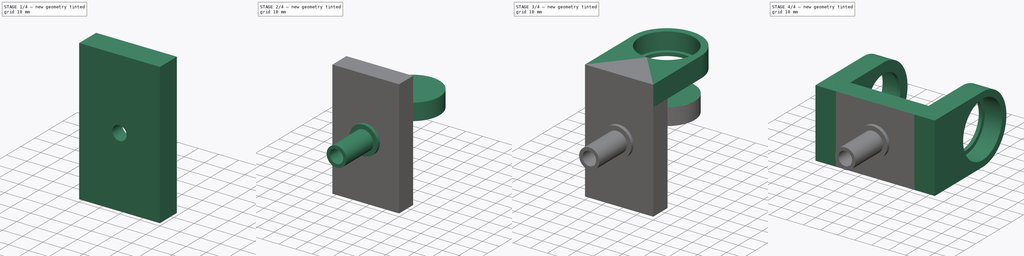
[diagram: build sequence overview — one tinted view per stage of 4, left to right]
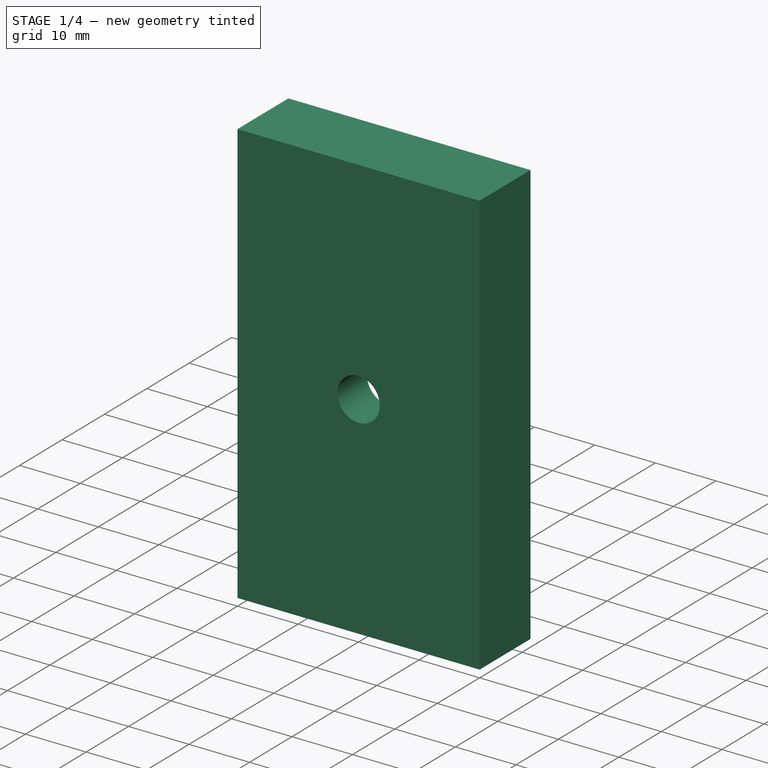
[diagram: stage 1 of 4 — iso view after this stage's code; geometry added in this stage tinted green]
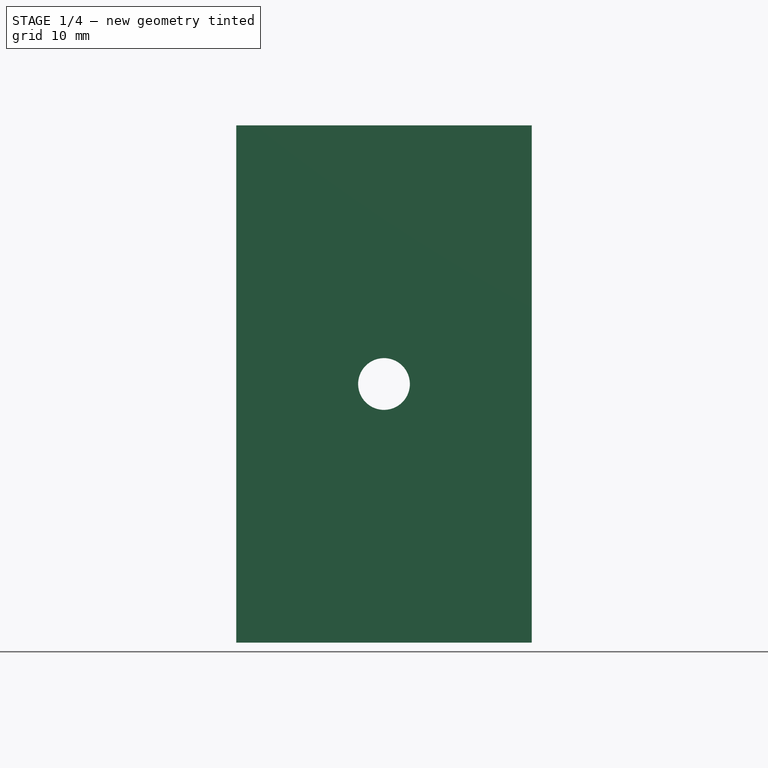
[diagram: stage 1 of 4 — front view after this stage's code; geometry added in this stage tinted green]
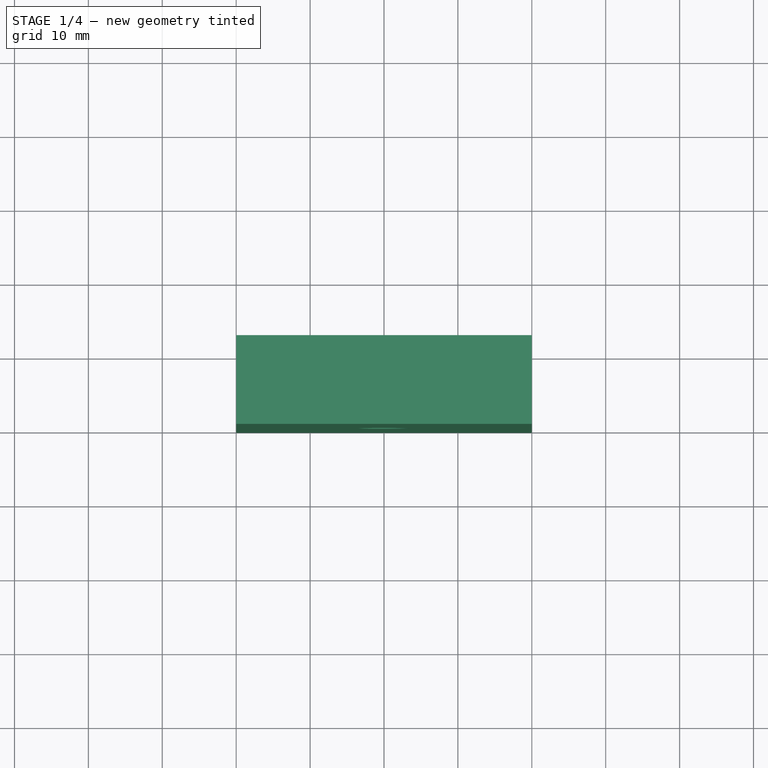
[diagram: stage 1 of 4 — top view after this stage's code; geometry added in this stage tinted green]
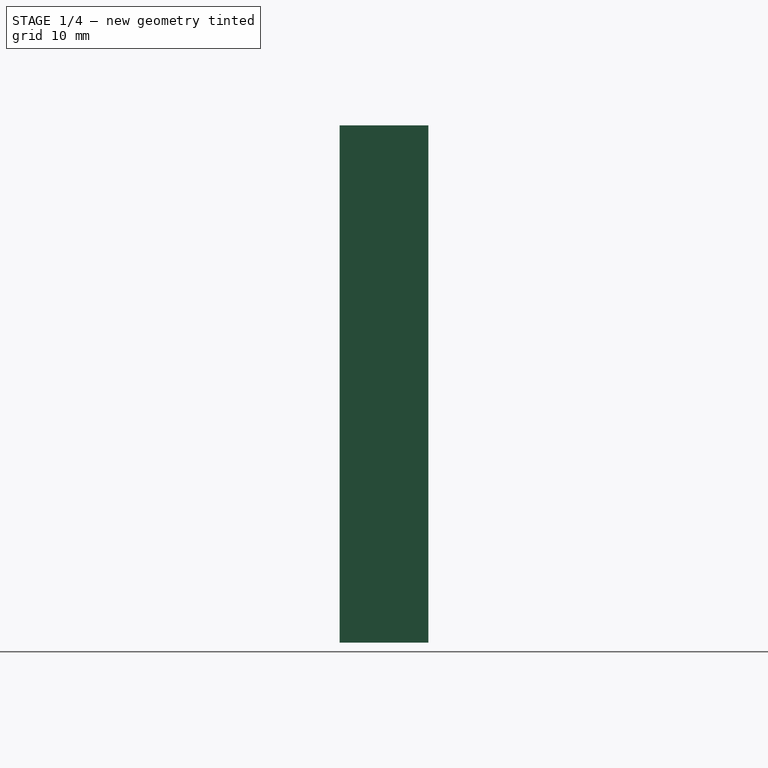
[diagram: stage 1 of 4 — right view after this stage's code; geometry added in this stage tinted green]
FCSTD DOCUMENT  (FreeCAD 0.16R6698 (Git))
Label: bearing-bracket-bottom
License: All rights reserved
LicenseURL: http://en.wikipedia.org/wiki/All_rights_reserved
objects: Sketcher::SketchObject×6, Part::Extrusion×6, Part::Cut×3, Part::Cylinder×2, Part::MultiFuse×1
note: 18 computed .brp shape members not serialized (recipe doc carries the construction recipe); baked Part::Feature solids carry a one-line shape summary decoded from their .brp

FEATURE [Sketcher::SketchObject] Sketch001
  Placement = pos=(0,0,0) rot=(1,0,0;1.5708rad)
  sketch-geometry (5):
    g0: LineSegment StartX=-20 StartY=35 StartZ=0 EndX=20 EndY=35 EndZ=0
    g1: LineSegment StartX=20 StartY=35 StartZ=0 EndX=20 EndY=-35 EndZ=0
    g2: LineSegment StartX=20 StartY=-35 StartZ=0 EndX=-20 EndY=-35 EndZ=0
    g3: LineSegment StartX=-20 StartY=-35 StartZ=0 EndX=-20 EndY=35 EndZ=0
    g4: Circle CenterX=0 CenterY=0 CenterZ=0 NormalX=0 NormalY=0 NormalZ=1 Radius=3.5
  constraints (14):
    c: Coincident(g0,g1)
    c: Coincident(g1,g2)
    c: Coincident(g2,g3)
    c: Coincident(g3,g0)
    c: Horizontal(g0)
    c: Horizontal(g2)
    c: Vertical(g1)
    c: Vertical(g3)
    c: Symmetric(g2,g1,g-2)
    c: DistanceX(g2,g2) = 40
    c: DistanceY(g1,g1) = 70
    c: Symmetric(g2,g0,g-1)
    c: Coincident(g4,g-1)
    c: Radius(g4) = 3.5
FEATURE [Part::Extrusion] Extrude002  label="middle-plane"
  Base = -> Sketch001
  Dir = (0,12,0)
  Placement = pos=(0,-40,0) rot=(0,0,1;0rad)
  Solid = true
FEATURE [Sketcher::SketchObject] Sketch005
  Placement = pos=(0,0,0) rot=(1,0,0;1.5708rad)
  sketch-geometry (1):
    g0: Circle CenterX=0 CenterY=0 CenterZ=0 NormalX=0 NormalY=0 NormalZ=1 Radius=10
  constraints (2):
    c: Coincident(g0,g-1)
    c: Radius(g0) = 10
FEATURE [Part::Extrusion] Extrude005  label="contra-nut-cut"
  Base = -> Sketch005
  Dir = (0,5,0)
  Placement = pos=(0,-33,0) rot=(0,0,1;0rad)
  Solid = true
FEATURE [Part::Cut] Cut002  label="nut-cut"
  Base = -> Extrude002
  Tool = -> Extrude005
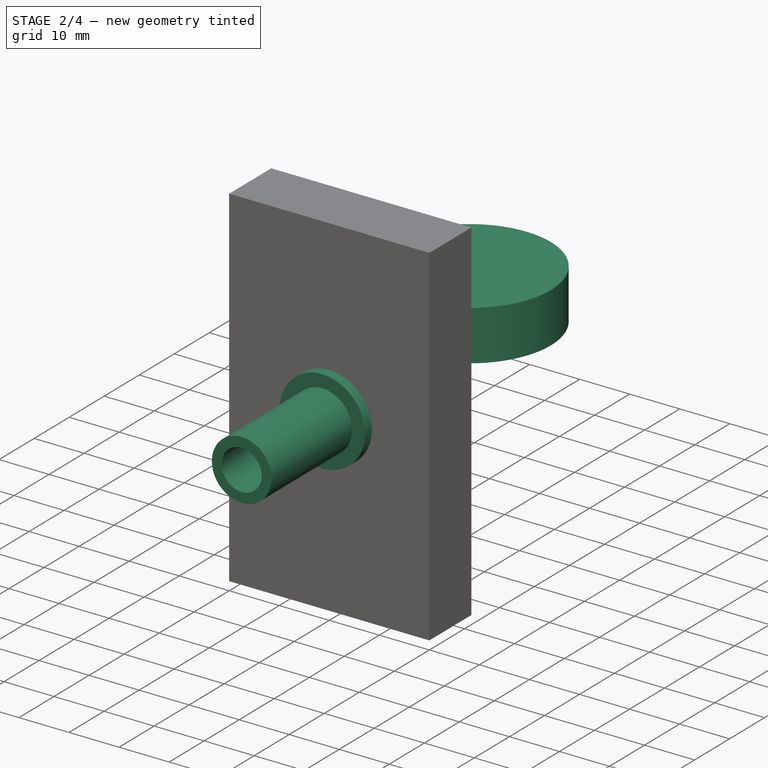
[diagram: stage 2 of 4 — iso view after this stage's code; geometry added in this stage tinted green]
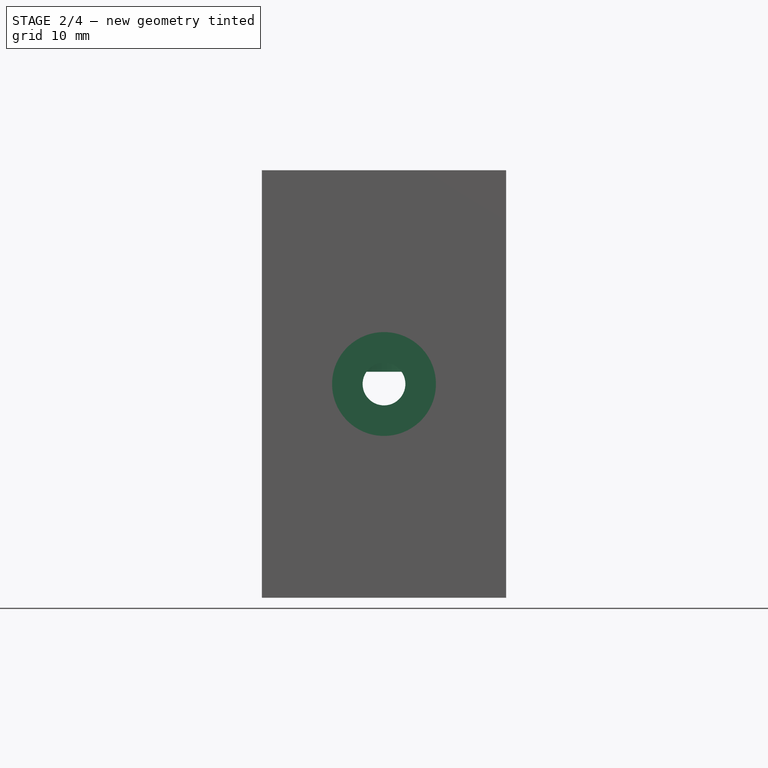
[diagram: stage 2 of 4 — front view after this stage's code; geometry added in this stage tinted green]
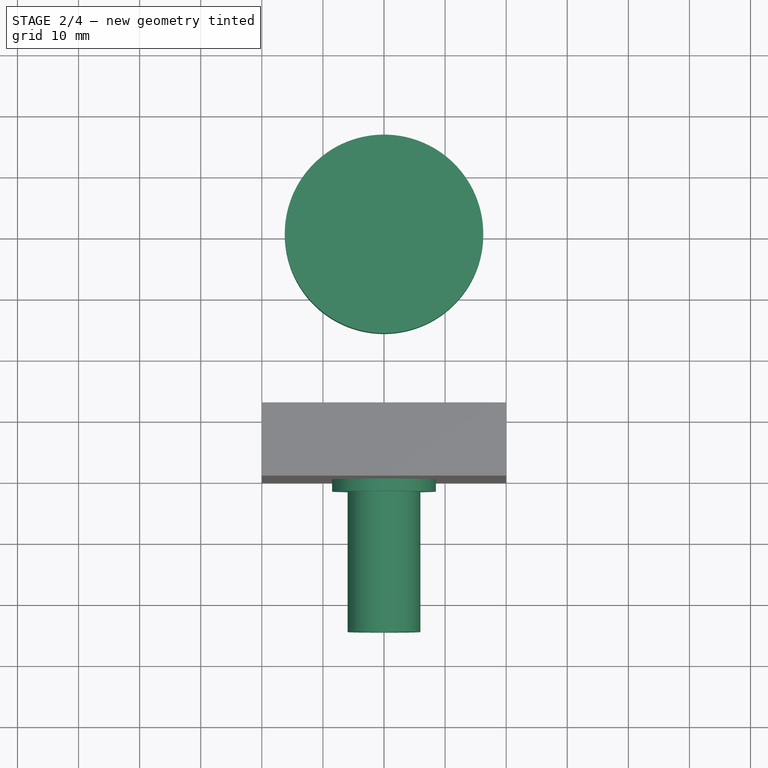
[diagram: stage 2 of 4 — top view after this stage's code; geometry added in this stage tinted green]
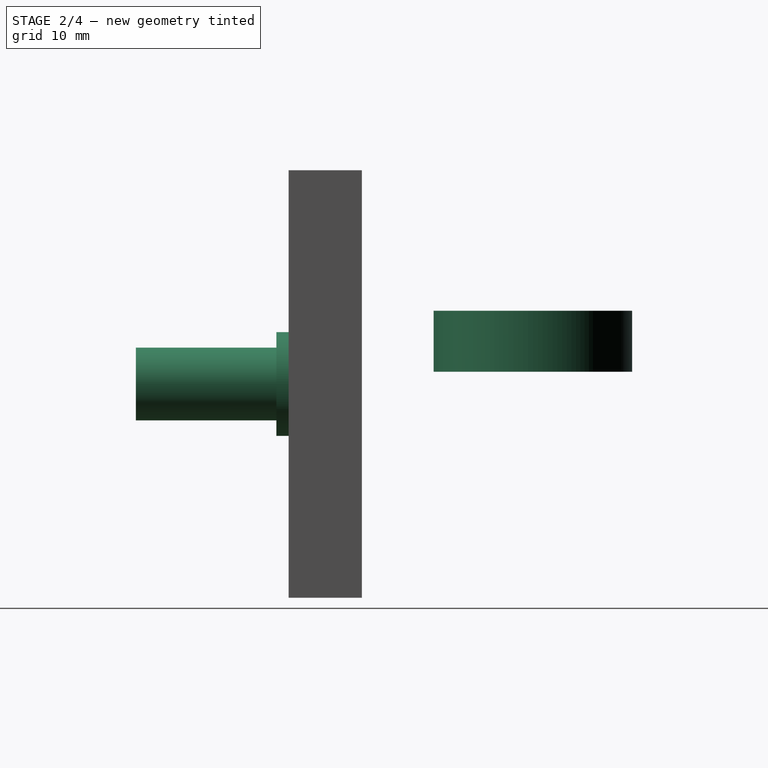
[diagram: stage 2 of 4 — right view after this stage's code; geometry added in this stage tinted green]
FEATURE [Part::Cylinder] Cylinder001
  Angle = 360
  Height = 10
  Placement = pos=(0,0,2) rot=(0,0,1;0rad)
  Radius = 16.25
FEATURE [Sketcher::SketchObject] Sketch003
  Placement = pos=(0,0,0) rot=(-1,0,0;4.71239rad)
  sketch-geometry (2):
    g0: Circle CenterX=0 CenterY=0 CenterZ=0 NormalX=0 NormalY=0 NormalZ=1 Radius=5.95
    g1: Circle CenterX=0 CenterY=0 CenterZ=0 NormalX=0 NormalY=0 NormalZ=1 Radius=4
  constraints (4):
    c: Coincident(g0,g-1)
    c: Coincident(g1,g-1)
    c: Radius(g0) = 5.95
    c: Radius(g1) = 4
FEATURE [Part::Extrusion] Extrude003  label="z-bearings-cylinder"
  Base = -> Sketch003
  Dir = (0,25,0)
  Placement = pos=(0,-65,0) rot=(0,0,1;0rad)
  Solid = true
FEATURE [Sketcher::SketchObject] Sketch004
  Placement = pos=(0,0,0) rot=(1,0,0;1.5708rad)
  sketch-geometry (2):
    g0: Circle CenterX=0 CenterY=0 CenterZ=0 NormalX=0 NormalY=0 NormalZ=1 Radius=8.5
    g1: Circle CenterX=0 CenterY=0 CenterZ=0 NormalX=0 NormalY=0 NormalZ=1 Radius=3.5
  constraints (4):
    c: Coincident(g0,g-1)
    c: Coincident(g1,g-1)
    c: Radius(g0) = 8.5
    c: Radius(g1) = 3.5
FEATURE [Part::Extrusion] Extrude004  label="z-bearings-pad"
  Base = -> Sketch004
  Dir = (0,2,0)
  Placement = pos=(0,-42,0) rot=(0,0,1;0rad)
  Solid = true
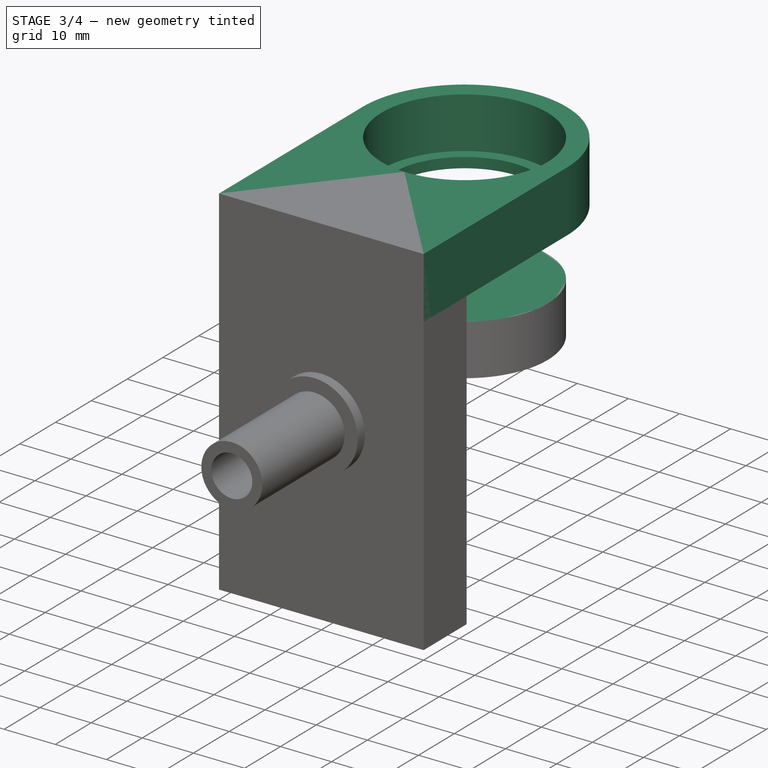
[diagram: stage 3 of 4 — iso view after this stage's code; geometry added in this stage tinted green]
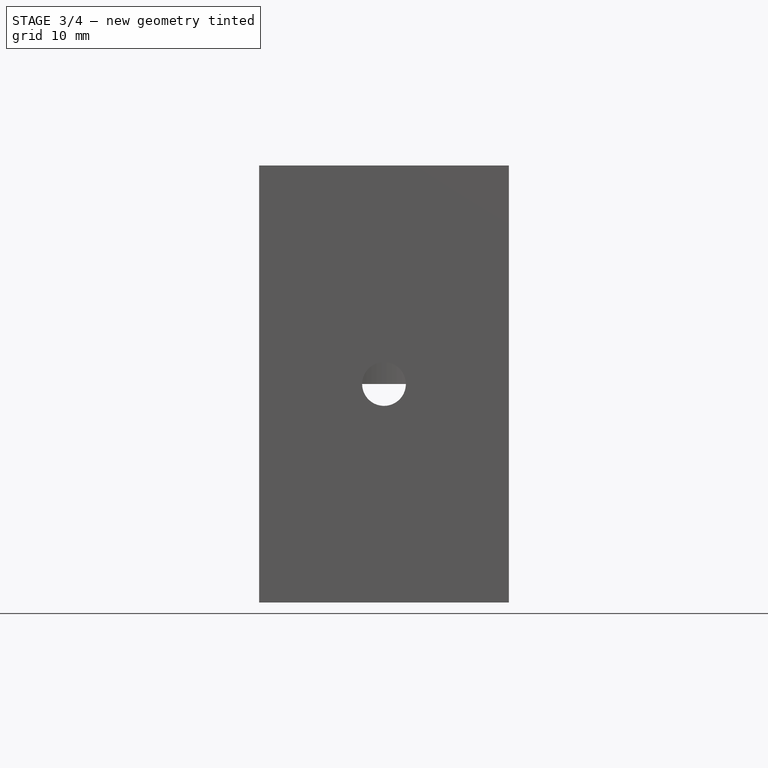
[diagram: stage 3 of 4 — front view after this stage's code; geometry added in this stage tinted green]
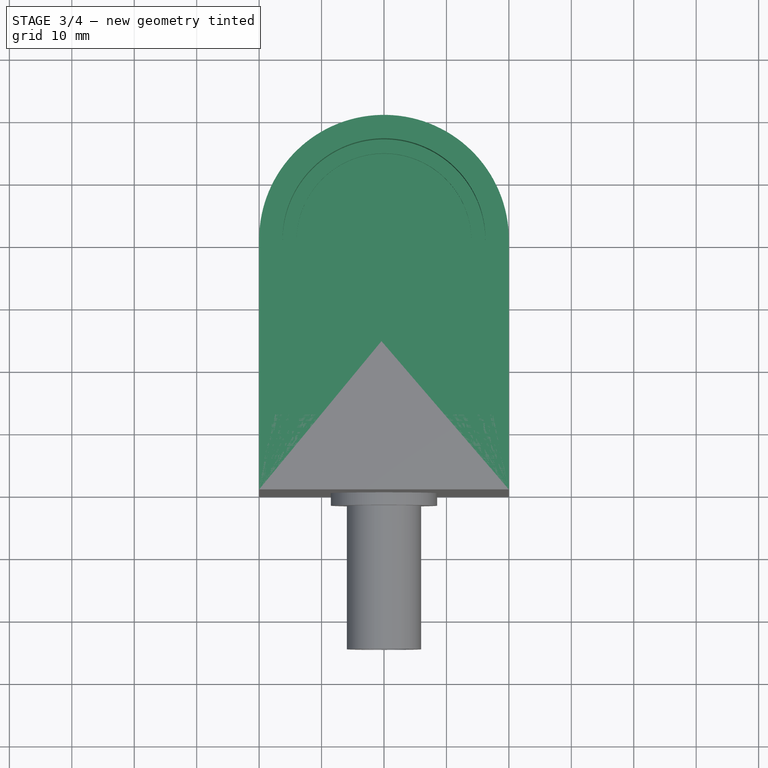
[diagram: stage 3 of 4 — top view after this stage's code; geometry added in this stage tinted green]
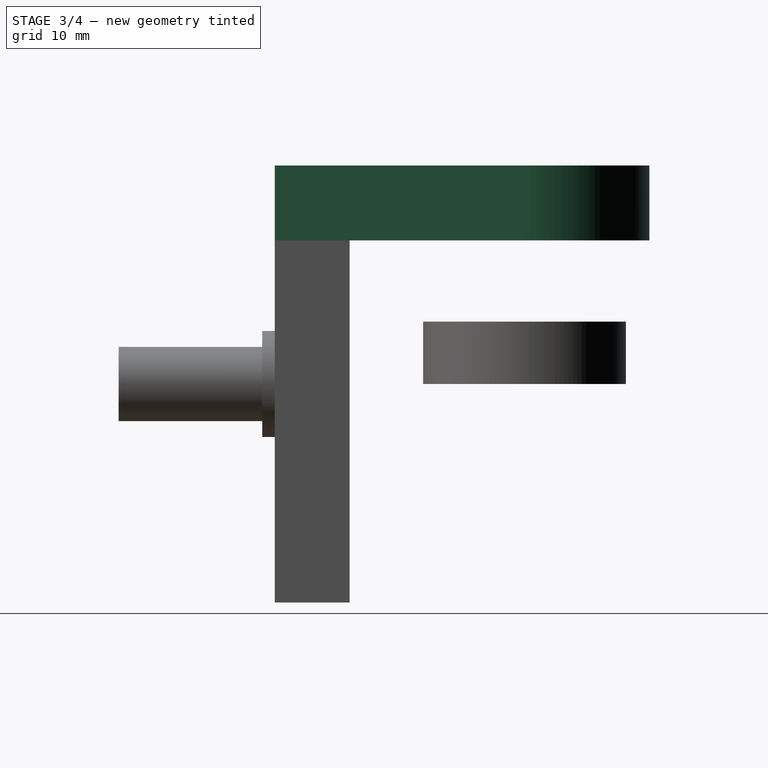
[diagram: stage 3 of 4 — right view after this stage's code; geometry added in this stage tinted green]
FEATURE [Sketcher::SketchObject] Sketch
  sketch-geometry (5):
    g0: ArcOfCircle CenterX=0 CenterY=0 CenterZ=0 NormalX=0 NormalY=0 NormalZ=1 Radius=20 StartAngle=0 EndAngle=3.14159
    g1: Circle CenterX=0 CenterY=0 CenterZ=0 NormalX=0 NormalY=0 NormalZ=1 Radius=14
    g2: LineSegment StartX=-20 StartY=0 StartZ=0 EndX=-20 EndY=-40 EndZ=0
    g3: LineSegment StartX=-20 StartY=-40 StartZ=0 EndX=20 EndY=-40 EndZ=0
    g4: LineSegment StartX=20 StartY=-40 StartZ=0 EndX=20 EndY=0 EndZ=0
  constraints (13):
    c: Coincident(g0,g-1)
    c: PointOnObject(g0,g-1)
    c: PointOnObject(g0,g-1)
    c: Coincident(g1,g-1)
    c: Tangent(g0,g2) = -1.5708
    c: Coincident(g2,g3)
    c: Horizontal(g3)
    c: Coincident(g3,g4)
    c: Coincident(g4,g0)
    c: Vertical(g4)
    c: Radius(g1) = 14
    c: Radius(g0) = 20
    c: DistanceY(g4,g4) = 40
FEATURE [Part::Extrusion] Extrude  label="bearing-nest-r"
  Base = -> Sketch
  Dir = (0,0,12)
  Solid = true
FEATURE [Sketcher::SketchObject] Sketch002
  Placement = pos=(0,0,0) rot=(1,0,0;1.5708rad)
  sketch-geometry (6):
    g0: LineSegment StartX=-38 StartY=25 StartZ=0 EndX=38 EndY=25 EndZ=0
    g1: LineSegment StartX=38 StartY=25 StartZ=0 EndX=38 EndY=-25 EndZ=0
    g2: LineSegment StartX=38 StartY=-25 StartZ=0 EndX=-38 EndY=-25 EndZ=0
    g3: LineSegment StartX=-38 StartY=-25 StartZ=0 EndX=-38 EndY=25 EndZ=0
    g4: Circle CenterX=-32.5 CenterY=0 CenterZ=0 NormalX=0 NormalY=0 NormalZ=1 Radius=3.25
    g5: Circle CenterX=32.5 CenterY=0 CenterZ=0 NormalX=0 NormalY=0 NormalZ=1 Radius=3.25
  constraints (18):
    c: Coincident(g0,g1)
    c: Coincident(g1,g2)
    c: Coincident(g2,g3)
    c: Coincident(g3,g0)
    c: Horizontal(g0)
    c: Horizontal(g2)
    c: Vertical(g1)
    c: Vertical(g3)
    c: Symmetric(g0,g0,g-2)
    c: Symmetric(g0,g2,g-1)
    c: DistanceX(g0,g0) = 76
    c: DistanceY(g1,g1) = 50
    c: PointOnObject(g4,g-1)
    c: PointOnObject(g5,g-1)
    c: Radius(g4) = 3.25
    c: Equal(g4,g5)
    c: Symmetric(g4,g5,g-2)
    c: DistanceX(g4,g5) = 65
FEATURE [Part::Cylinder] Cylinder
  Angle = 360
  Height = 10
  Radius = 16.25
FEATURE [Part::Cut] Cut001  label="bearing-nest-r-cut"
  Base = -> Extrude
  Placement = pos=(0,0,23) rot=(0,0,1;0rad)
  Tool = -> Cylinder001
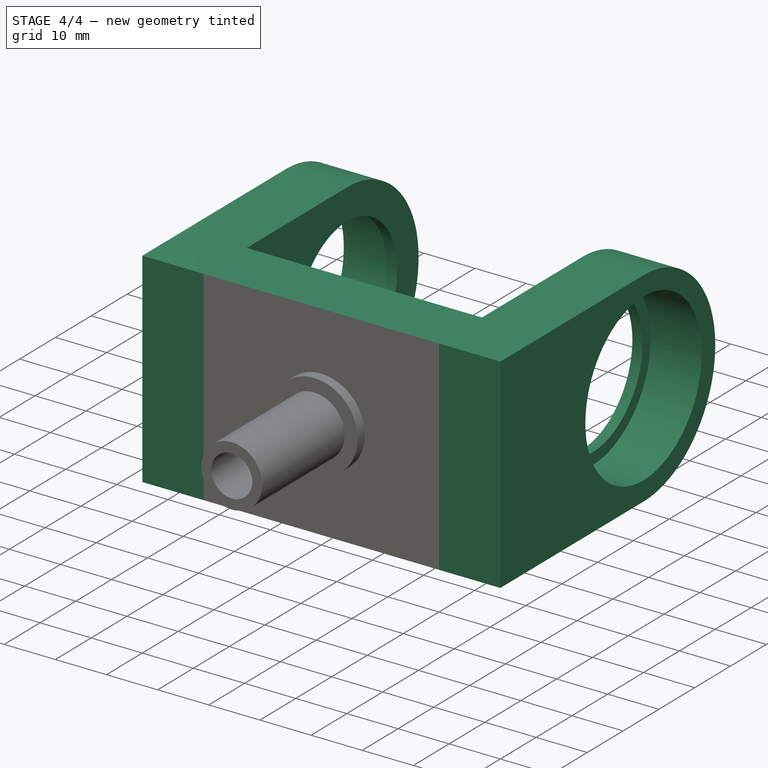
[diagram: stage 4 of 4 — iso view after this stage's code; geometry added in this stage tinted green]
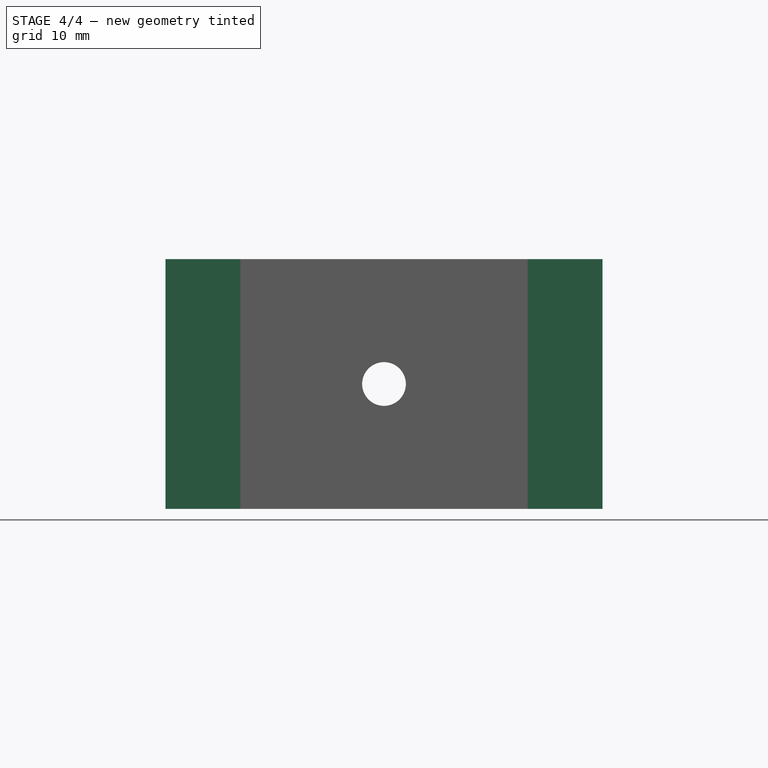
[diagram: stage 4 of 4 — front view after this stage's code; geometry added in this stage tinted green]
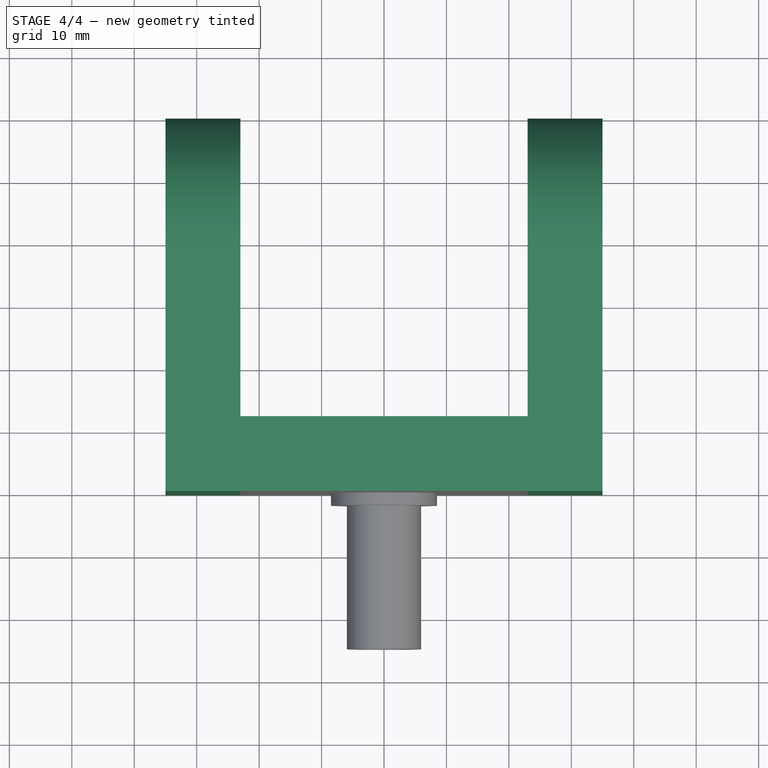
[diagram: stage 4 of 4 — top view after this stage's code; geometry added in this stage tinted green]
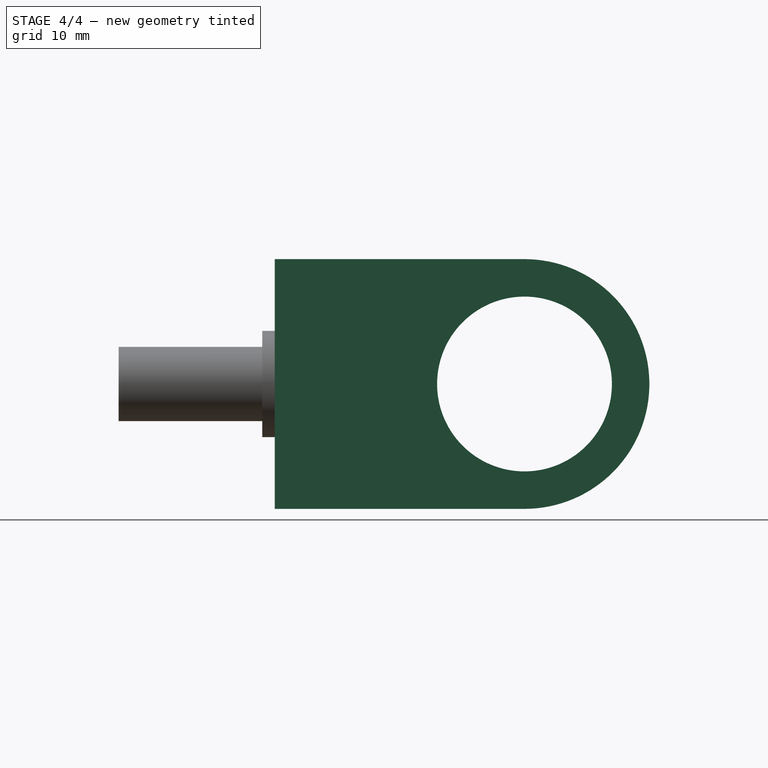
[diagram: stage 4 of 4 — right view after this stage's code; geometry added in this stage tinted green]
FEATURE [Part::Extrusion] Extrude001  label="bearing-nest-l"
  Base = -> Sketch
  Dir = (0,0,12)
  Solid = true
FEATURE [Part::Cut] Cut  label="barin-nest-l-cut"
  Base = -> Extrude001
  Placement = pos=(0,0,-35) rot=(0,0,1;0rad)
  Tool = -> Cylinder
FEATURE [Part::MultiFuse] Fusion
  Placement = pos=(0,0,0) rot=(0,1,0;1.5708rad)
  Shapes = -> [Cut,Cut002,Extrude004,Extrude003,Cut001]
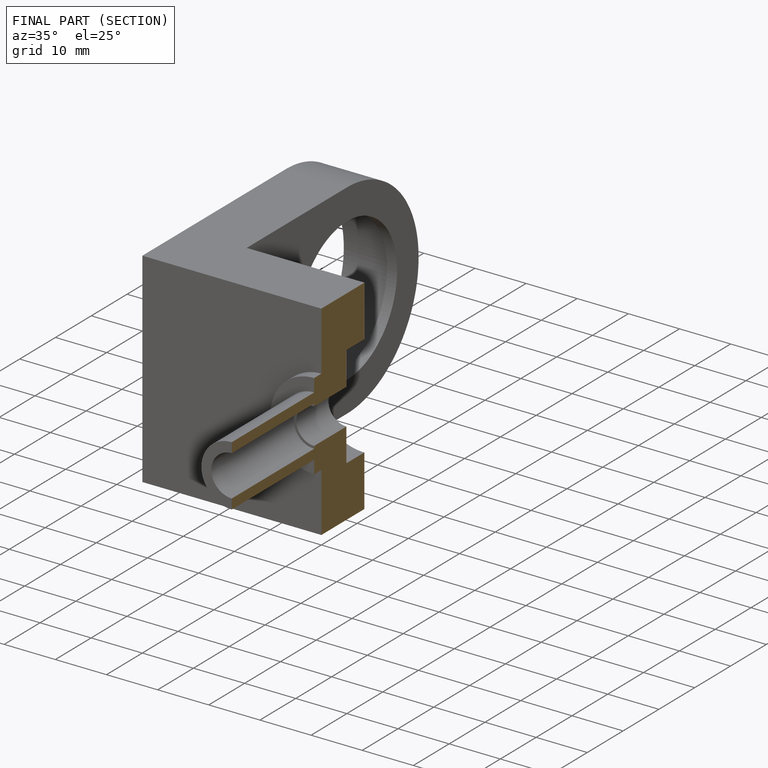
[diagram: finished part — half-section view (interior)]
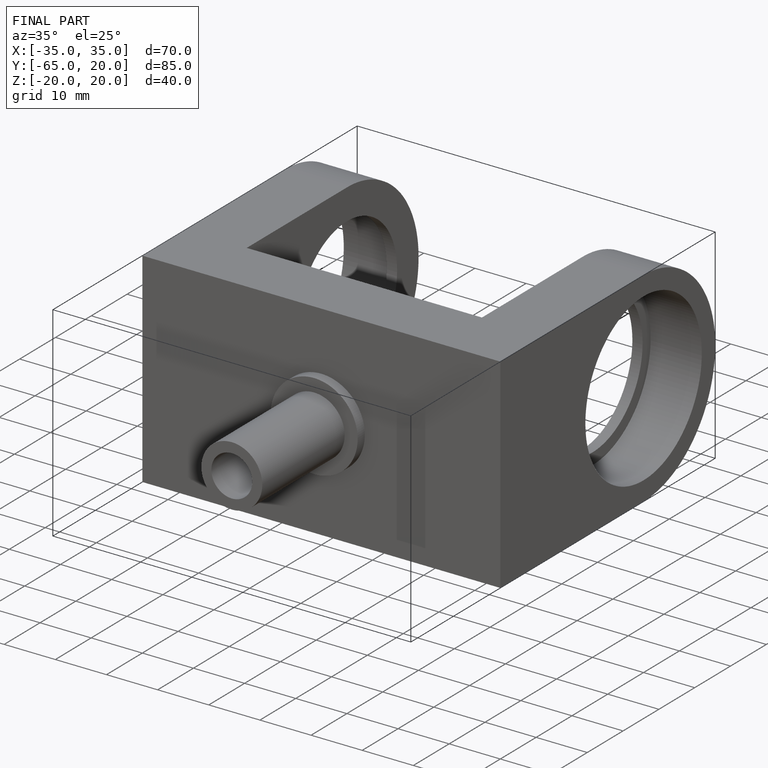
[diagram: finished part — iso view with bounding-box wireframe]
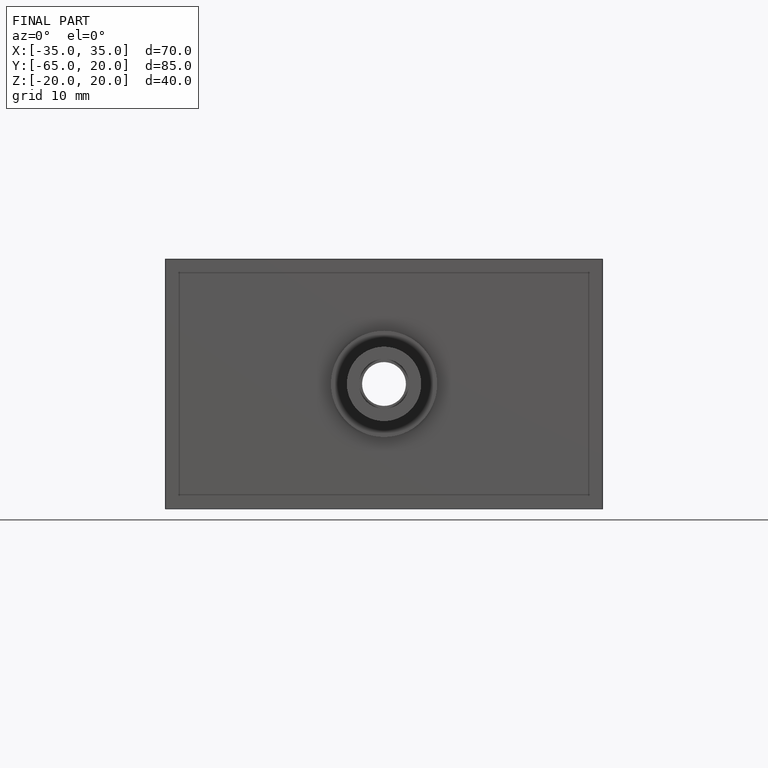
[diagram: finished part — front view with bounding-box wireframe]
